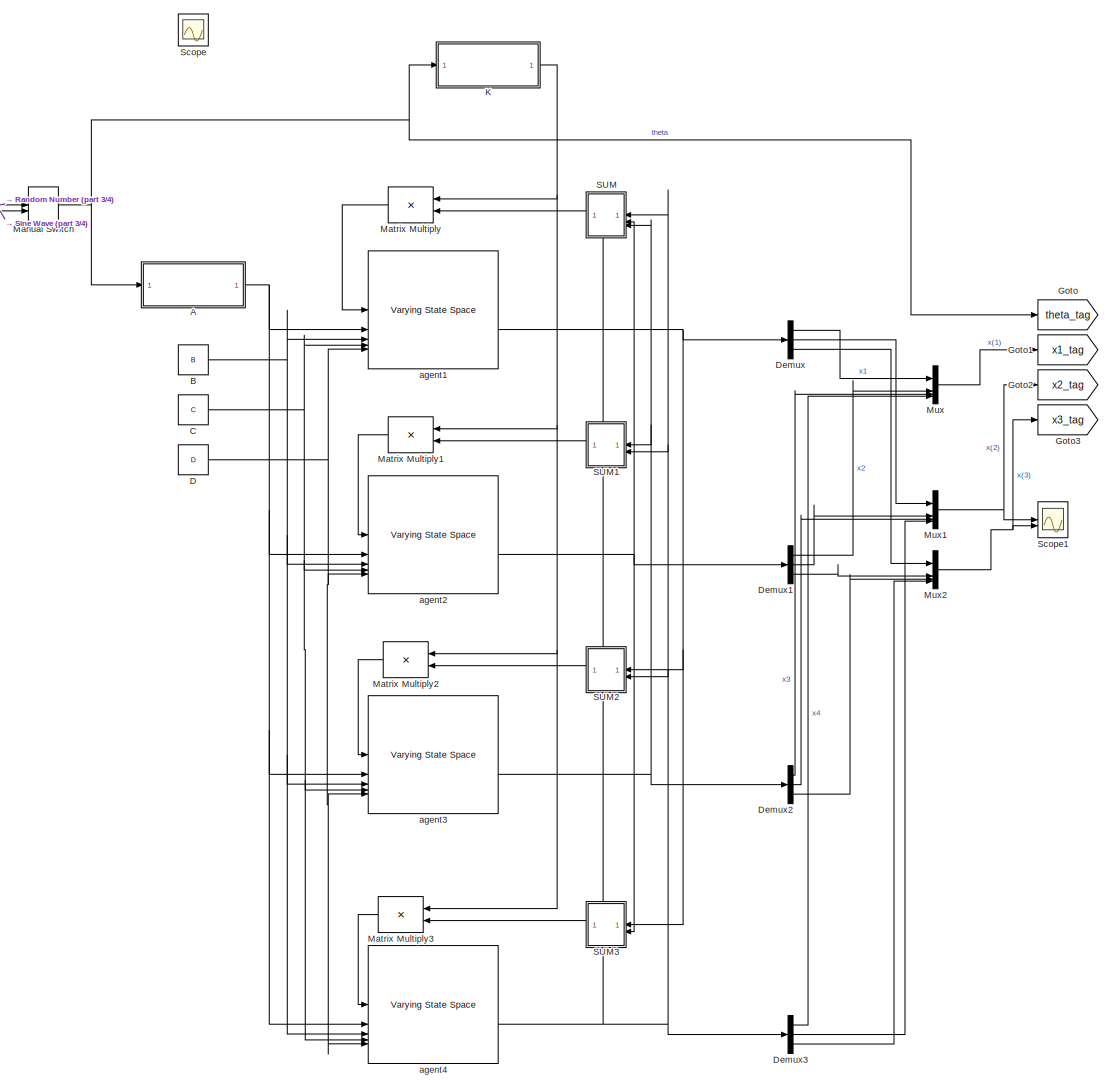
[diagram: root canvas - part 1/4, center side, full height]
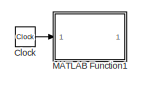
[diagram: root canvas - part 2/4, top left region]
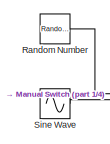
[diagram: root canvas - part 3/4, top left region]
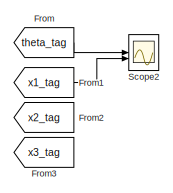
[diagram: root canvas - part 4/4, middle right region]
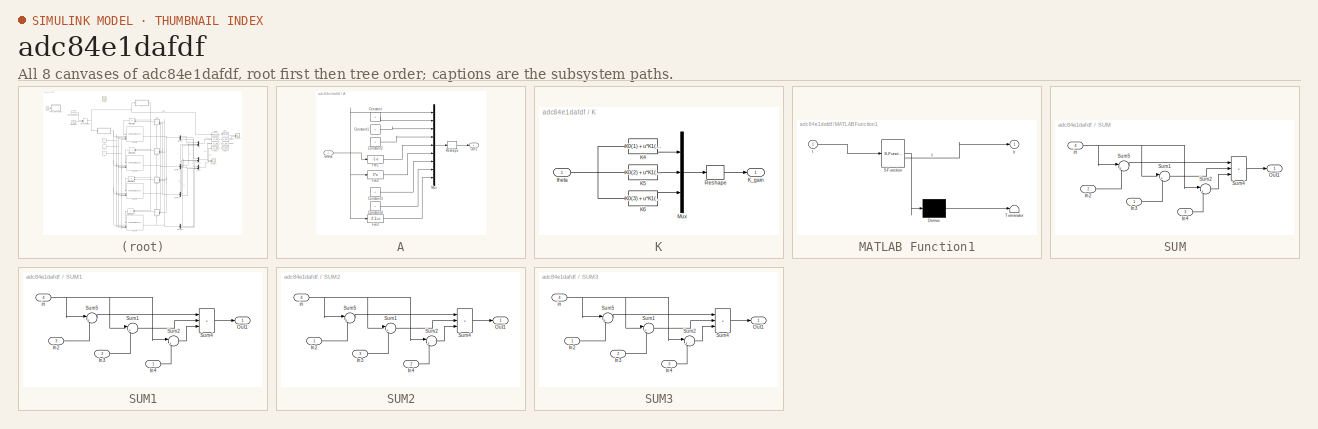
[diagram: thumbnail index - all 8 canvases of the model, root first then tree order]
MODEL slx_adc84e1dafdf
KIND model
CONFIG AbsTol = auto
CONFIG EnableMultiTasking = off
CONFIG FixedStep = auto
CONFIG MaxStep = auto
CONFIG MinStep = auto
CONFIG RelTol = 1e-3
CONFIG SampleTimeConstraint = Unconstrained
CONFIG SolverName = VariableStepAuto
CONFIG StartTime = 0.0
CONFIG StopTime = 5
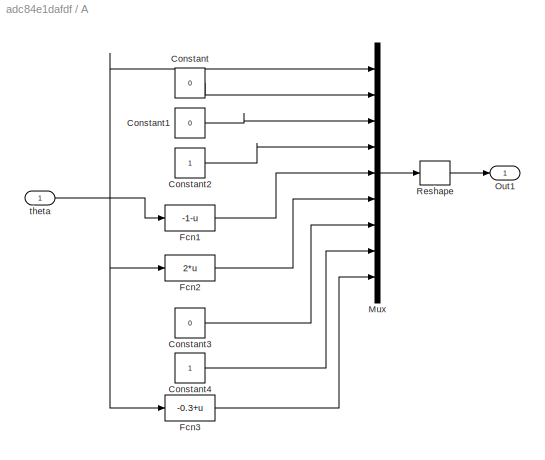
BLOCK [SubSystem] A
BLOCK [Constant] A/Constant
  Value = 0
BLOCK [Constant] A/Constant1
  Value = 0
BLOCK [Constant] A/Constant2
BLOCK [Constant] A/Constant3
  Value = 0
BLOCK [Constant] A/Constant4
BLOCK [Fcn] A/Fcn1
  Expr = -1-u
BLOCK [Fcn] A/Fcn2
  Expr = 2*u
BLOCK [Fcn] A/Fcn3
  Expr = -0.3+u
BLOCK [Mux] A/Mux
  DisplayOption = bar
  Inputs = 9
BLOCK [Outport] A/Out1
BLOCK [Reshape] A/Reshape
  OutputDimensionality = Customize
  OutputDimensions = [3,3]
BLOCK [Inport] A/theta
BLOCK [Constant] B
  Value = B
BLOCK [Constant] C
  Value = C
  VectorParams1D = off
BLOCK [Clock] Clock
BLOCK [Constant] D
  Value = D
  VectorParams1D = off
BLOCK [Demux] Demux
  Outputs = 3
BLOCK [Demux] Demux1
  Outputs = 3
BLOCK [Demux] Demux2
  Outputs = 3
BLOCK [Demux] Demux3
  Outputs = 3
BLOCK [From] From
  GotoTag = theta_tag
BLOCK [From] From1
  GotoTag = x1_tag
BLOCK [From] From2
  GotoTag = x2_tag
BLOCK [From] From3
  GotoTag = x3_tag
BLOCK [Goto] Goto
  GotoTag = theta_tag
BLOCK [Goto] Goto1
  GotoTag = x1_tag
BLOCK [Goto] Goto2
  GotoTag = x2_tag
BLOCK [Goto] Goto3
  GotoTag = x3_tag
BLOCK [SubSystem] K
BLOCK [Fcn] K/K4
  Expr = K0(1) + u*K1(1)
BLOCK [Fcn] K/K5
  Expr = K0(2) + u*K1(2)
BLOCK [Fcn] K/K6
  Expr = K0(3) + u*K1(3)
BLOCK [Outport] K/K_gain
BLOCK [Mux] K/Mux
  DisplayOption = bar
  Inputs = 3
BLOCK [Reshape] K/Reshape
  OutputDimensionality = Customize
  OutputDimensions = [1,3]
BLOCK [Inport] K/theta
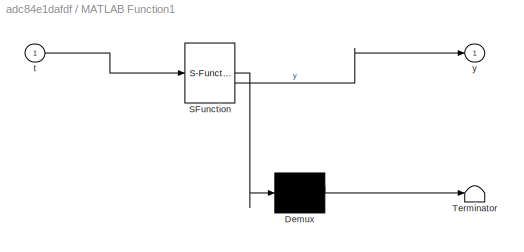
BLOCK [SubSystem] MATLAB Function1
  ErrorFcn = Stateflow.Translate.translate
  LibrarySourceBlock = simulink/User-Defined\nFunctions/MATLAB Function
  PermitHierarchicalResolution = ExplicitOnly
  SFBlockType = MATLAB Function
  TreatAsAtomicUnit = on
BLOCK [Demux] MATLAB Function1/ Demux 
  Outputs = 1
BLOCK [S-Function] MATLAB Function1/ SFunction 
  EnableBusSupport = on
  FunctionName = sf_sfun
  PortCounts = [1 2]
  SFcnIsStateOwnerBlock = off
  SFunctionDeploymentMode = off
  Tag = Stateflow S-Function 1
BLOCK [Terminator] MATLAB Function1/ Terminator 
BLOCK [Inport] MATLAB Function1/t
BLOCK [Outport] MATLAB Function1/y
BLOCK [ManualSwitch] Manual Switch
BLOCK [Product] Matrix Multiply
  Multiplication = Matrix(*)
  NameLocation = top
BLOCK [Product] Matrix Multiply1
  Multiplication = Matrix(*)
  NameLocation = top
BLOCK [Product] Matrix Multiply2
  Multiplication = Matrix(*)
  NameLocation = top
BLOCK [Product] Matrix Multiply3
  Multiplication = Matrix(*)
  NameLocation = top
BLOCK [Mux] Mux
  DisplayOption = bar
BLOCK [Mux] Mux1
  DisplayOption = bar
BLOCK [Mux] Mux2
  DisplayOption = bar
BLOCK [RandomNumber] Random Number
  SampleTime = 0.5
BLOCK [SubSystem] SUM
  NameLocation = top
  PortSchema = {"entries":[{"content":{"sides":[{"content":{"connectorIds":["In1","In2","In3"]},"type":"ConnectorPlacement.EquallySpacedRectSide","uuid":"fd34f642-52c8-46e7-b483-8376a438fe66"},{"content":{"connectorIds":["Out1"],"side":"RIGHT"},"type":"ConnectorPlacement.EquallySpacedRectSide","uuid":"dec59217-61bd-4aab-963d-2963be1a00c7"},{"content":{"connectorIds":[],"side":"TOP"},"type":"ConnectorPlacement.Eq...<+401ch>
BLOCK [Inport] SUM/In2
  Port = 2
BLOCK [Inport] SUM/In3
BLOCK [Inport] SUM/In4
  Port = 3
BLOCK [Outport] SUM/Out1
BLOCK [Sum] SUM/Sum1
  Inputs = |+-
BLOCK [Sum] SUM/Sum2
  Inputs = |+-
BLOCK [Sum] SUM/Sum4
  IconShape = rectangular
  Inputs = |+++
BLOCK [Sum] SUM/Sum5
  Inputs = |+-
BLOCK [Inport] SUM/in
  Port = 4
BLOCK [SubSystem] SUM1
  NameLocation = top
  PortSchema = {"entries":[{"content":{"sides":[{"content":{"connectorIds":["In1","In2"]},"type":"ConnectorPlacement.EquallySpacedRectSide","uuid":"fd34f642-52c8-46e7-b483-8376a438fe66"},{"content":{"connectorIds":["Out1"],"side":"RIGHT"},"type":"ConnectorPlacement.EquallySpacedRectSide","uuid":"dec59217-61bd-4aab-963d-2963be1a00c7"},{"content":{"connectorIds":["In3"],"side":"TOP"},"type":"ConnectorPlacement.Equ...<+400ch>  <repeated x3 — deduplicated; at blocks: SUM1, SUM2, SUM3>
BLOCK [Inport] SUM1/In2
  Port = 3
BLOCK [Inport] SUM1/In3
  Port = 2
BLOCK [Inport] SUM1/In4
BLOCK [Outport] SUM1/Out1
BLOCK [Sum] SUM1/Sum1
  Inputs = |+-
BLOCK [Sum] SUM1/Sum2
  Inputs = |+-
BLOCK [Sum] SUM1/Sum4
  IconShape = rectangular
  Inputs = |+++
BLOCK [Sum] SUM1/Sum5
  Inputs = |+-
BLOCK [Inport] SUM1/in
  Port = 4
BLOCK [SubSystem] SUM2
  NameLocation = top
BLOCK [Inport] SUM2/In2
BLOCK [Inport] SUM2/In3
  Port = 3
BLOCK [Inport] SUM2/In4
  Port = 2
BLOCK [Outport] SUM2/Out1
BLOCK [Sum] SUM2/Sum1
  Inputs = |+-
BLOCK [Sum] SUM2/Sum2
  Inputs = |+-
BLOCK [Sum] SUM2/Sum4
  IconShape = rectangular
  Inputs = |+++
BLOCK [Sum] SUM2/Sum5
  Inputs = |+-
BLOCK [Inport] SUM2/in
  Port = 4
BLOCK [SubSystem] SUM3
  NameLocation = top
BLOCK [Inport] SUM3/In2
BLOCK [Inport] SUM3/In3
  Port = 2
BLOCK [Inport] SUM3/In4
  Port = 3
BLOCK [Outport] SUM3/Out1
BLOCK [Sum] SUM3/Sum1
  Inputs = |+-
BLOCK [Sum] SUM3/Sum2
  Inputs = |+-
BLOCK [Sum] SUM3/Sum4
  IconShape = rectangular
  Inputs = |+++
BLOCK [Sum] SUM3/Sum5
  Inputs = |+-
BLOCK [Inport] SUM3/in
  Port = 4
BLOCK [Scope] Scope
  Floating = off
  NumInputPorts = 1
  ScopeSpecificationString = Simulink.scopes.TimeScopeBlockCfg('CurrentConfiguration', extmgr.ConfigurationSet(extmgr.Configuration('Core','General UI',true),extmgr.Configuration('Core','Source UI',true),extmgr.Configuration('Sources','WiredSimulink',true,'DataLoggingVariableName','ScopeData2'),extmgr.Configuration('Visuals','Time Domain',true,'SerializedDisplays',{struct('MinYLimReal','-1.00000','MaxYLimReal','1.00000','YLab...<+1432ch>
BLOCK [Scope] Scope1
  Floating = off
  NumInputPorts = 2
  ScopeSpecificationString = Simulink.scopes.TimeScopeBlockCfg('CurrentConfiguration', extmgr.ConfigurationSet(extmgr.Configuration('Core','General UI',true),extmgr.Configuration('Core','Source UI',true),extmgr.Configuration('Sources','WiredSimulink',true,'DataLoggingVariableName','ScopeData1'),extmgr.Configuration('Visuals','Time Domain',true,'SerializedDisplays',{struct('MinYLimReal','-6.99943','MaxYLimReal','6.43626','YLab...<+2626ch>
BLOCK [Scope] Scope2
  Floating = off
  NumInputPorts = 2
  ScopeSpecificationString = Simulink.scopes.TimeScopeBlockCfg('CurrentConfiguration', extmgr.ConfigurationSet(extmgr.Configuration('Core','General UI',true),extmgr.Configuration('Core','Source UI',true),extmgr.Configuration('Sources','WiredSimulink',true,'DataLoggingVariableName','ScopeData1'),extmgr.Configuration('Visuals','Time Domain',true,'SerializedDisplays',{struct('MinYLimReal','-1.85158','MaxYLimReal','2.20248','YLab...<+3199ch>
BLOCK [Sin] Sine Wave
  SampleTime = 0
BLOCK [Reference] agent1  REF=cstblocks/Linear Parameter Varying/Varying State Space
  SourceBlock = cstblocks/Linear Parameter Varying/Varying State Space
  SourceType = Varying State Space
BLOCK [Reference] agent2  REF=cstblocks/Linear Parameter Varying/Varying State Space
  SourceBlock = cstblocks/Linear Parameter Varying/Varying State Space
  SourceType = Varying State Space
BLOCK [Reference] agent3  REF=cstblocks/Linear Parameter Varying/Varying State Space
  SourceBlock = cstblocks/Linear Parameter Varying/Varying State Space
  SourceType = Varying State Space
BLOCK [Reference] agent4  REF=cstblocks/Linear Parameter Varying/Varying State Space
  SourceBlock = cstblocks/Linear Parameter Varying/Varying State Space
  SourceType = Varying State Space
LINE A/Constant1:1 -> A/Mux:3
LINE A/Constant2:1 -> A/Mux:4
LINE A/Constant3:1 -> A/Mux:7
LINE A/Constant4:1 -> A/Mux:8
LINE A/Constant:1 -> A/Mux:2
LINE A/Fcn1:1 -> A/Mux:5
LINE A/Fcn2:1 -> A/Mux:6
LINE A/Fcn3:1 -> A/Mux:9
LINE A/Mux:1 -> A/Reshape:1
LINE A/Reshape:1 -> A/Out1:1
NET A/theta:1 -> A/Fcn1:1, A/Fcn2:1, A/Fcn3:1, A/Mux:1
NET A:1 -> agent1:2, agent2:2, agent3:2, agent4:2
NET B:1 -> agent1:3, agent2:3, agent3:3, agent4:3
NET C:1 -> agent1:4, agent2:4, agent3:4, agent4:4
LINE Clock:1 -> MATLAB Function1:1
NET D:1 -> agent1:5, agent2:5, agent3:5, agent4:5
LINE Demux1:1 -> Mux:2
LINE Demux1:2 -> Mux1:2
LINE Demux1:3 -> Mux2:2
LINE Demux2:1 -> Mux:3
LINE Demux2:2 -> Mux1:3
LINE Demux2:3 -> Mux2:3
LINE Demux3:1 -> Mux:4
LINE Demux3:2 -> Mux1:4
LINE Demux3:3 -> Mux2:4
LINE Demux:1 -> Mux:1
LINE Demux:2 -> Mux1:1
LINE Demux:3 -> Mux2:1
LINE From1:1 -> Scope2:2
LINE From:1 -> Scope2:1
LINE K/K4:1 -> K/Mux:1
LINE K/K5:1 -> K/Mux:2
LINE K/K6:1 -> K/Mux:3
LINE K/Mux:1 -> K/Reshape:1
LINE K/Reshape:1 -> K/K_gain:1
NET K/theta:1 -> K/K4:1, K/K5:1, K/K6:1
NET K:1 -> Matrix Multiply1:1, Matrix Multiply2:1, Matrix Multiply3:1, Matrix Multiply:1
NET Manual Switch:1 -> A:1, Goto:1, K:1
LINE Matrix Multiply1:1 -> agent2:1
LINE Matrix Multiply2:1 -> agent3:1
LINE Matrix Multiply3:1 -> agent4:1
LINE Matrix Multiply:1 -> agent1:1
NET Mux1:1 -> Goto2:1, Scope1:1
NET Mux2:1 -> Goto3:1, Scope1:2
LINE Mux:1 -> Goto1:1
LINE Random Number:1 -> Manual Switch:1
LINE SUM/In2:1 -> SUM/Sum5:2
LINE SUM/In3:1 -> SUM/Sum1:2
LINE SUM/In4:1 -> SUM/Sum2:2
LINE SUM/Sum1:1 -> SUM/Sum4:2
LINE SUM/Sum2:1 -> SUM/Sum4:3
LINE SUM/Sum4:1 -> SUM/Out1:1
LINE SUM/Sum5:1 -> SUM/Sum4:1
NET SUM/in:1 -> SUM/Sum1:1, SUM/Sum2:1, SUM/Sum5:1
LINE SUM1/In2:1 -> SUM1/Sum5:2
LINE SUM1/In3:1 -> SUM1/Sum1:2
LINE SUM1/In4:1 -> SUM1/Sum2:2
LINE SUM1/Sum1:1 -> SUM1/Sum4:2
LINE SUM1/Sum2:1 -> SUM1/Sum4:3
LINE SUM1/Sum4:1 -> SUM1/Out1:1
LINE SUM1/Sum5:1 -> SUM1/Sum4:1
NET SUM1/in:1 -> SUM1/Sum1:1, SUM1/Sum2:1, SUM1/Sum5:1
LINE SUM1:1 -> Matrix Multiply1:2
LINE SUM2/In2:1 -> SUM2/Sum5:2
LINE SUM2/In3:1 -> SUM2/Sum1:2
LINE SUM2/In4:1 -> SUM2/Sum2:2
LINE SUM2/Sum1:1 -> SUM2/Sum4:2
LINE SUM2/Sum2:1 -> SUM2/Sum4:3
LINE SUM2/Sum4:1 -> SUM2/Out1:1
LINE SUM2/Sum5:1 -> SUM2/Sum4:1
NET SUM2/in:1 -> SUM2/Sum1:1, SUM2/Sum2:1, SUM2/Sum5:1
LINE SUM2:1 -> Matrix Multiply2:2
LINE SUM3/In2:1 -> SUM3/Sum5:2
LINE SUM3/In3:1 -> SUM3/Sum1:2
LINE SUM3/In4:1 -> SUM3/Sum2:2
LINE SUM3/Sum1:1 -> SUM3/Sum4:2
LINE SUM3/Sum2:1 -> SUM3/Sum4:3
LINE SUM3/Sum4:1 -> SUM3/Out1:1
LINE SUM3/Sum5:1 -> SUM3/Sum4:1
NET SUM3/in:1 -> SUM3/Sum1:1, SUM3/Sum2:1, SUM3/Sum5:1
LINE SUM3:1 -> Matrix Multiply3:2
LINE SUM:1 -> Matrix Multiply:2
LINE Sine Wave:1 -> Manual Switch:2
NET agent1:2 -> Demux:1, SUM1:3, SUM2:1, SUM3:1, SUM:4
NET agent2:2 -> Demux1:1, SUM1:4, SUM2:3, SUM3:2, SUM:2
NET agent3:2 -> Demux2:1, SUM1:1, SUM2:4, SUM3:3, SUM:3
NET agent4:2 -> Demux3:1, SUM1:2, SUM2:2, SUM3:4, SUM:1
note: NET lines group one-source signal fan-out (src -> all destinations, sorted); 1:1 wires keep LINE
CHART MATLAB Function1 states=1 transitions=1
  STATE_LABEL 'eML_blk_kernel()'
  STATE_LABEL 'SCRIPT:\nfunction y = piecewise(t)\n\nif t <= 2\n    y = 1.5;\nelseif (t > 2) && (t <= 3)\n    y = -1;\nelseif (t > 3) && (t <= 5)\n    y = 1.8;\nelseif (t > 5) && (t <= 7)\n    y = 0;\nelseif (t > 7) && (t <= 9)\n    y = 1.1;\nelse \n    y = -1.2;\nend\n'
CHART  states=0 transitions=0
